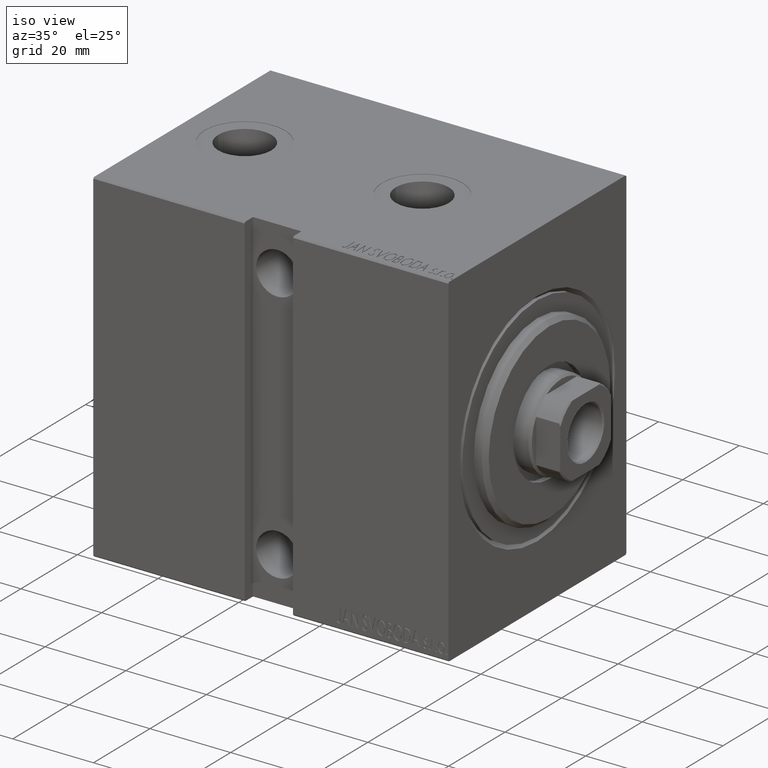
[diagram: clean part render]
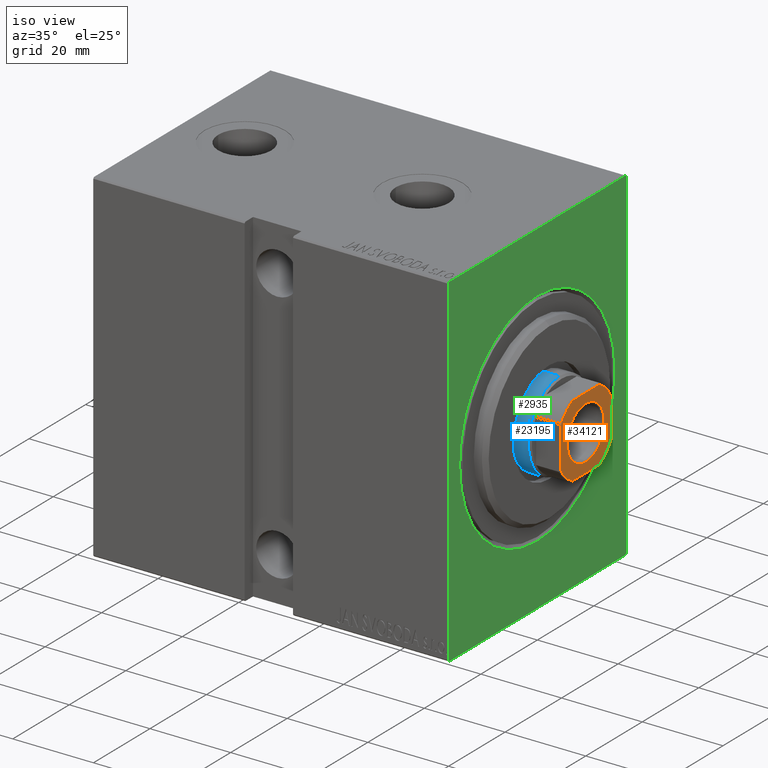
[diagram: same view with three faces highlighted in distinct colors, each labeled with its STEP entity id]
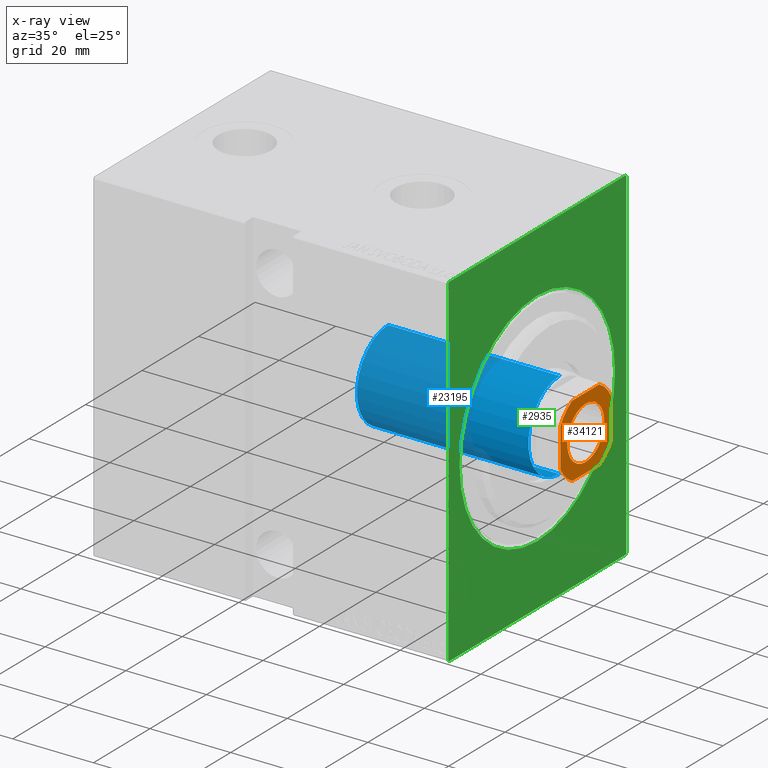
[diagram: x-ray of the same camera — body ghosted, the three highlighted faces saturated]
A machine part, iso view with three faces highlighted in distinct colors.
The next image is the same camera in x-ray (body ghosted, the three faces saturated) — at least one of them is partly hidden behind the body in this view.
Their STEP definitions:

[orange] entity #34121 — the highlighted planar face has unit normal (1, 0, -0).
#101 = DIRECTION ( 'NONE',  ( -0.000000000000000000, 0.000000000000000000, 1.000000000000000000 ) ) ;
#464 = CARTESIAN_POINT ( 'NONE',  ( -9.000000000000001776, 8.999999999999998224, 88.00000000000000000 ) ) ;
#1429 = CARTESIAN_POINT ( 'NONE',  ( -9.000000000000001776, 4.800000000000007816, 88.00000000000000000 ) ) ;
#1678 = VERTEX_POINT ( 'NONE', #1861 ) ;
#1861 = CARTESIAN_POINT ( 'NONE',  ( 8.999999999999998224, 4.799999999999978506, 88.00000000000000000 ) ) ;
#2196 = EDGE_CURVE ( 'NONE', #26020, #9207, #25052, .T. ) ;
#2554 = CARTESIAN_POINT ( 'NONE',  ( 0.000000000000000000, 0.000000000000000000, 88.00000000000000000 ) ) ;
#3001 = FACE_OUTER_BOUND ( 'NONE', #37236, .T. ) ;
#3141 = CARTESIAN_POINT ( 'NONE',  ( 0.000000000000000000, 0.000000000000000000, 88.00000000000000000 ) ) ;
#4458 = VERTEX_POINT ( 'NONE', #22059 ) ;
#4914 = CIRCLE ( 'NONE', #39031, 6.550000000000000711 ) ;
#6569 = EDGE_CURVE ( 'NONE', #4458, #25927, #35705, .T. ) ;
#6928 = LINE ( 'NONE', #464, #15140 ) ;
#6982 = ORIENTED_EDGE ( 'NONE', *, *, #20545, .T. ) ;
#7387 = EDGE_CURVE ( 'NONE', #12870, #4458, #6928, .T. ) ;
#8424 = ORIENTED_EDGE ( 'NONE', *, *, #38610, .T. ) ;
#8460 = EDGE_CURVE ( 'NONE', #9207, #1678, #29191, .T. ) ;
#8870 = CARTESIAN_POINT ( 'NONE',  ( 0.000000000000000000, 0.000000000000000000, 88.00000000000000000 ) ) ;
#8910 = DIRECTION ( 'NONE',  ( -0.000000000000000000, 0.000000000000000000, 1.000000000000000000 ) ) ;
#9027 = LINE ( 'NONE', #32619, #36908 ) ;
#9077 = ORIENTED_EDGE ( 'NONE', *, *, #7387, .T. ) ;
#9207 = VERTEX_POINT ( 'NONE', #23378 ) ;
#9534 = CARTESIAN_POINT ( 'NONE',  ( 4.799999999999974065, -9.000000000000001776, 88.00000000000000000 ) ) ;
#10119 = EDGE_CURVE ( 'NONE', #17489, #12870, #42206, .T. ) ;
#11041 = ORIENTED_EDGE ( 'NONE', *, *, #10119, .T. ) ;
#11427 = CARTESIAN_POINT ( 'NONE',  ( -4.800000000000012257, 8.999999999999998224, 88.00000000000000000 ) ) ;
#12152 = DIRECTION ( 'NONE',  ( -1.000000000000000000, -0.000000000000000000, -0.000000000000000000 ) ) ;
#12605 = AXIS2_PLACEMENT_3D ( 'NONE', #8870, #29773, #33118 ) ;
#12809 = DIRECTION ( 'NONE',  ( -0.000000000000000000, 0.000000000000000000, 1.000000000000000000 ) ) ;
#12870 = VERTEX_POINT ( 'NONE', #1429 ) ;
#13035 = DIRECTION ( 'NONE',  ( 1.000000000000000000, 0.000000000000000000, 0.000000000000000000 ) ) ;
#13257 = PLANE ( 'NONE',  #24812 ) ;
#13700 = DIRECTION ( 'NONE',  ( 1.000000000000000000, 0.000000000000000000, 0.000000000000000000 ) ) ;
#14889 = VECTOR ( 'NONE', #22421, 1000.000000000000000 ) ;
#15140 = VECTOR ( 'NONE', #34299, 1000.000000000000000 ) ;
#15391 = DIRECTION ( 'NONE',  ( 1.000000000000000000, 0.000000000000000000, 0.000000000000000000 ) ) ;
#15623 = CIRCLE ( 'NONE', #31937, 10.19999999999998863 ) ;
#16483 = CARTESIAN_POINT ( 'NONE',  ( 6.550000000000000711, 0.000000000000000000, 88.00000000000000000 ) ) ;
#17090 = CARTESIAN_POINT ( 'NONE',  ( 0.000000000000000000, 0.000000000000000000, 88.00000000000000000 ) ) ;
#17489 = VERTEX_POINT ( 'NONE', #11427 ) ;
#18506 = ORIENTED_EDGE ( 'NONE', *, *, #29408, .T. ) ;
#19123 = CARTESIAN_POINT ( 'NONE',  ( -4.799999999999956302, -9.000000000000001776, 88.00000000000000000 ) ) ;
#19956 = CARTESIAN_POINT ( 'NONE',  ( 0.000000000000000000, 0.000000000000000000, 88.00000000000000000 ) ) ;
#20496 = DIRECTION ( 'NONE',  ( 1.000000000000000000, 0.000000000000000000, 0.000000000000000000 ) ) ;
#20545 = EDGE_CURVE ( 'NONE', #29112, #39347, #40346, .T. ) ;
#20580 = CARTESIAN_POINT ( 'NONE',  ( 4.799999999999979394, 8.999999999999998224, 88.00000000000000000 ) ) ;
#20858 = DIRECTION ( 'NONE',  ( -0.000000000000000000, 0.000000000000000000, 1.000000000000000000 ) ) ;
#21989 = CARTESIAN_POINT ( 'NONE',  ( -8.999999999999998224, -9.000000000000001776, 88.00000000000000000 ) ) ;
#22059 = CARTESIAN_POINT ( 'NONE',  ( -8.999999999999998224, -4.799999999999960743, 88.00000000000000000 ) ) ;
#22421 = DIRECTION ( 'NONE',  ( 1.000000000000000000, 0.000000000000000000, 0.000000000000000000 ) ) ;
#22996 = AXIS2_PLACEMENT_3D ( 'NONE', #26034, #8910, #15391 ) ;
#23043 = CARTESIAN_POINT ( 'NONE',  ( 0.000000000000000000, 0.000000000000000000, 88.00000000000000000 ) ) ;
#23378 = CARTESIAN_POINT ( 'NONE',  ( 9.000000000000001776, -4.799999999999974065, 88.00000000000000000 ) ) ;
#23473 = FACE_BOUND ( 'NONE', #34324, .T. ) ;
#24812 = AXIS2_PLACEMENT_3D ( 'NONE', #23043, #101, #13700 ) ;
#25052 = CIRCLE ( 'NONE', #34305, 10.19999999999998863 ) ;
#25927 = VERTEX_POINT ( 'NONE', #19123 ) ;
#26020 = VERTEX_POINT ( 'NONE', #9534 ) ;
#26034 = CARTESIAN_POINT ( 'NONE',  ( 0.000000000000000000, 0.000000000000000000, 88.00000000000000000 ) ) ;
#26520 = VECTOR ( 'NONE', #39428, 1000.000000000000000 ) ;
#26998 = ORIENTED_EDGE ( 'NONE', *, *, #8460, .T. ) ;
#27068 = ORIENTED_EDGE ( 'NONE', *, *, #2196, .T. ) ;
#29112 = VERTEX_POINT ( 'NONE', #40283 ) ;
#29191 = LINE ( 'NONE', #32538, #26520 ) ;
#29408 = EDGE_CURVE ( 'NONE', #39347, #29112, #4914, .T. ) ;
#29773 = DIRECTION ( 'NONE',  ( 0.000000000000000000, -0.000000000000000000, -1.000000000000000000 ) ) ;
#31242 = VERTEX_POINT ( 'NONE', #20580 ) ;
#31937 = AXIS2_PLACEMENT_3D ( 'NONE', #2554, #12809, #13035 ) ;
#32538 = CARTESIAN_POINT ( 'NONE',  ( 8.999999999999998224, 8.999999999999998224, 88.00000000000000000 ) ) ;
#32619 = CARTESIAN_POINT ( 'NONE',  ( -9.000000000000001776, 8.999999999999998224, 88.00000000000000000 ) ) ;
#33118 = DIRECTION ( 'NONE',  ( 1.000000000000000000, 0.000000000000000000, 0.000000000000000000 ) ) ;
#33573 = AXIS2_PLACEMENT_3D ( 'NONE', #3141, #37633, #20496 ) ;
#34121 = ADVANCED_FACE ( 'NONE', ( #23473, #3001 ), #13257, .T. ) ;
#34299 = DIRECTION ( 'NONE',  ( 1.927470528863119049E-16, -1.000000000000000000, 0.000000000000000000 ) ) ;
#34305 = AXIS2_PLACEMENT_3D ( 'NONE', #17090, #20858, #34438 ) ;
#34324 = EDGE_LOOP ( 'NONE', ( #18506, #6982 ) ) ;
#34438 = DIRECTION ( 'NONE',  ( 1.000000000000000000, 0.000000000000000000, 0.000000000000000000 ) ) ;
#35705 = CIRCLE ( 'NONE', #33573, 10.19999999999997975 ) ;
#36891 = ORIENTED_EDGE ( 'NONE', *, *, #6569, .T. ) ;
#36908 = VECTOR ( 'NONE', #12152, 1000.000000000000000 ) ;
#37236 = EDGE_LOOP ( 'NONE', ( #26998, #42833, #40012, #11041, #9077, #36891, #8424, #27068 ) ) ;
#37633 = DIRECTION ( 'NONE',  ( -0.000000000000000000, 0.000000000000000000, 1.000000000000000000 ) ) ;
#38610 = EDGE_CURVE ( 'NONE', #25927, #26020, #42697, .T. ) ;
#38969 = EDGE_CURVE ( 'NONE', #31242, #17489, #9027, .T. ) ;
#39031 = AXIS2_PLACEMENT_3D ( 'NONE', #19956, #44001, #41097 ) ;
#39131 = EDGE_CURVE ( 'NONE', #1678, #31242, #15623, .T. ) ;
#39347 = VERTEX_POINT ( 'NONE', #16483 ) ;
#39428 = DIRECTION ( 'NONE',  ( -1.927470528863119049E-16, 1.000000000000000000, -0.000000000000000000 ) ) ;
#40012 = ORIENTED_EDGE ( 'NONE', *, *, #38969, .T. ) ;
#40283 = CARTESIAN_POINT ( 'NONE',  ( -6.550000000000000711, 8.021436534415164234E-16, 88.00000000000000000 ) ) ;
#40346 = CIRCLE ( 'NONE', #12605, 6.550000000000000711 ) ;
#41097 = DIRECTION ( 'NONE',  ( 1.000000000000000000, 0.000000000000000000, 0.000000000000000000 ) ) ;
#42206 = CIRCLE ( 'NONE', #22996, 10.20000000000000462 ) ;
#42697 = LINE ( 'NONE', #21989, #14889 ) ;
#42833 = ORIENTED_EDGE ( 'NONE', *, *, #39131, .T. ) ;
#44001 = DIRECTION ( 'NONE',  ( 0.000000000000000000, -0.000000000000000000, -1.000000000000000000 ) ) ;

[blue] entity #23195 — the highlighted cylindrical surface (partial cylindrical patch) has radius 11 mm, axis along (-1, -0, 0).
#320 = DIRECTION ( 'NONE',  ( -0.000000000000000000, -0.000000000000000000, -1.000000000000000000 ) ) ;
#3665 = DIRECTION ( 'NONE',  ( -0.000000000000000000, -0.000000000000000000, -1.000000000000000000 ) ) ;
#5297 = VECTOR ( 'NONE', #320, 1000.000000000000000 ) ;
#5322 = DIRECTION ( 'NONE',  ( -1.000000000000000000, 0.000000000000000000, 0.000000000000000000 ) ) ;
#6211 = CIRCLE ( 'NONE', #24692, 11.00000000000000000 ) ;
#7069 = CARTESIAN_POINT ( 'NONE',  ( 11.00000000000000000, 1.347111479062088405E-15, 39.00000000000000000 ) ) ;
#7422 = CARTESIAN_POINT ( 'NONE',  ( 0.000000000000000000, 0.000000000000000000, 81.49999999999997158 ) ) ;
#7673 = CARTESIAN_POINT ( 'NONE',  ( -11.00000000000000000, 0.000000000000000000, 81.99999999999998579 ) ) ;
#11006 = LINE ( 'NONE', #24573, #41554 ) ;
#11346 = CARTESIAN_POINT ( 'NONE',  ( 0.000000000000000000, 0.000000000000000000, 81.99999999999998579 ) ) ;
#11976 = EDGE_CURVE ( 'NONE', #30107, #33093, #11006, .T. ) ;
#12005 = DIRECTION ( 'NONE',  ( -0.000000000000000000, -0.000000000000000000, -1.000000000000000000 ) ) ;
#12010 = EDGE_CURVE ( 'NONE', #17288, #41500, #27696, .T. ) ;
#14035 = CARTESIAN_POINT ( 'NONE',  ( 0.000000000000000000, 0.000000000000000000, 39.00000000000000000 ) ) ;
#14334 = DIRECTION ( 'NONE',  ( 0.000000000000000000, 0.000000000000000000, -1.000000000000000000 ) ) ;
#15773 = CARTESIAN_POINT ( 'NONE',  ( -11.00000000000000000, 0.000000000000000000, 39.00000000000000000 ) ) ;
#16139 = CARTESIAN_POINT ( 'NONE',  ( -11.00000000000000000, 0.000000000000000000, 81.49999999999997158 ) ) ;
#17288 = VERTEX_POINT ( 'NONE', #16139 ) ;
#21335 = ORIENTED_EDGE ( 'NONE', *, *, #11976, .F. ) ;
#21814 = CIRCLE ( 'NONE', #41710, 11.00000000000000000 ) ;
#23076 = EDGE_CURVE ( 'NONE', #30107, #17288, #21814, .T. ) ;
#23195 = ADVANCED_FACE ( 'NONE', ( #35160 ), #32472, .T. ) ;
#23498 = ORIENTED_EDGE ( 'NONE', *, *, #23076, .T. ) ;
#23504 = ORIENTED_EDGE ( 'NONE', *, *, #25870, .T. ) ;
#24573 = CARTESIAN_POINT ( 'NONE',  ( 11.00000000000000000, 1.347111479062088405E-15, 81.99999999999998579 ) ) ;
#24630 = AXIS2_PLACEMENT_3D ( 'NONE', #11346, #12005, #5322 ) ;
#24692 = AXIS2_PLACEMENT_3D ( 'NONE', #14035, #41185, #35592 ) ;
#24761 = DIRECTION ( 'NONE',  ( 1.000000000000000000, 0.000000000000000000, 0.000000000000000000 ) ) ;
#24893 = CARTESIAN_POINT ( 'NONE',  ( 11.00000000000000000, 1.347111479062088405E-15, 81.49999999999997158 ) ) ;
#25870 = EDGE_CURVE ( 'NONE', #41500, #33093, #6211, .T. ) ;
#27696 = LINE ( 'NONE', #7673, #5297 ) ;
#28951 = EDGE_LOOP ( 'NONE', ( #21335, #23498, #33825, #23504 ) ) ;
#30107 = VERTEX_POINT ( 'NONE', #24893 ) ;
#32472 = CYLINDRICAL_SURFACE ( 'NONE', #24630, 11.00000000000000000 ) ;
#33093 = VERTEX_POINT ( 'NONE', #7069 ) ;
#33825 = ORIENTED_EDGE ( 'NONE', *, *, #12010, .T. ) ;
#35160 = FACE_OUTER_BOUND ( 'NONE', #28951, .T. ) ;
#35592 = DIRECTION ( 'NONE',  ( 1.000000000000000000, 0.000000000000000000, 0.000000000000000000 ) ) ;
#41185 = DIRECTION ( 'NONE',  ( 0.000000000000000000, 0.000000000000000000, 1.000000000000000000 ) ) ;
#41500 = VERTEX_POINT ( 'NONE', #15773 ) ;
#41554 = VECTOR ( 'NONE', #3665, 1000.000000000000000 ) ;
#41710 = AXIS2_PLACEMENT_3D ( 'NONE', #7422, #14334, #24761 ) ;

[green] entity #2935 — the highlighted planar face has unit normal (-1, 0, 0).
#267 = VECTOR ( 'NONE', #19739, 1000.000000000000000 ) ;
#512 = LINE ( 'NONE', #10313, #35294 ) ;
#526 = DIRECTION ( 'NONE',  ( 1.000000000000000000, 0.000000000000000000, 0.000000000000000000 ) ) ;
#1812 = DIRECTION ( 'NONE',  ( -0.000000000000000000, 0.7071067811865393571, 0.7071067811865556774 ) ) ;
#2372 = VERTEX_POINT ( 'NONE', #22260 ) ;
#2935 = ADVANCED_FACE ( 'NONE', ( #20564, #33489 ), #34145, .F. ) ;
#3970 = CARTESIAN_POINT ( 'NONE',  ( 0.000000000000000000, -31.49999999999999289, 42.19999999999996732 ) ) ;
#5179 = VECTOR ( 'NONE', #23502, 1000.000000000000000 ) ;
#5411 = CARTESIAN_POINT ( 'NONE',  ( 0.000000000000000000, 31.50000000000000000, 42.50000000000000000 ) ) ;
#5797 = EDGE_CURVE ( 'NONE', #29104, #25594, #24927, .T. ) ;
#6134 = VERTEX_POINT ( 'NONE', #13018 ) ;
#6758 = CARTESIAN_POINT ( 'NONE',  ( 0.000000000000000000, -31.49999999999999289, -42.20000000000000995 ) ) ;
#6812 = ORIENTED_EDGE ( 'NONE', *, *, #14285, .T. ) ;
#6936 = EDGE_LOOP ( 'NONE', ( #41719, #16297, #7144, #8099, #43159, #30358, #33341, #14987 ) ) ;
#7004 = VERTEX_POINT ( 'NONE', #32437 ) ;
#7123 = EDGE_CURVE ( 'NONE', #29104, #7004, #27497, .T. ) ;
#7144 = ORIENTED_EDGE ( 'NONE', *, *, #24616, .F. ) ;
#7374 = CARTESIAN_POINT ( 'NONE',  ( 0.000000000000000000, 31.19999999999999218, 42.50000000000000000 ) ) ;
#7629 = CARTESIAN_POINT ( 'NONE',  ( 0.000000000000000000, -31.49999999999999289, 42.49999999999998579 ) ) ;
#7661 = DIRECTION ( 'NONE',  ( 0.000000000000000000, 0.000000000000000000, -1.000000000000000000 ) ) ;
#7805 = DIRECTION ( 'NONE',  ( 0.000000000000000000, 0.000000000000000000, -1.000000000000000000 ) ) ;
#8017 = AXIS2_PLACEMENT_3D ( 'NONE', #17683, #526, #7661 ) ;
#8099 = ORIENTED_EDGE ( 'NONE', *, *, #10640, .T. ) ;
#8194 = AXIS2_PLACEMENT_3D ( 'NONE', #21965, #21745, #39102 ) ;
#8753 = LINE ( 'NONE', #5411, #22322 ) ;
#9111 = DIRECTION ( 'NONE',  ( 0.000000000000000000, 0.000000000000000000, -1.000000000000000000 ) ) ;
#9402 = VECTOR ( 'NONE', #41636, 1000.000000000000000 ) ;
#10160 = LINE ( 'NONE', #19308, #267 ) ;
#10313 = CARTESIAN_POINT ( 'NONE',  ( 0.000000000000000000, 31.19999999999999218, 42.50000000000000000 ) ) ;
#10640 = EDGE_CURVE ( 'NONE', #40949, #7004, #10160, .T. ) ;
#11012 = EDGE_CURVE ( 'NONE', #37393, #18970, #8753, .T. ) ;
#11672 = CARTESIAN_POINT ( 'NONE',  ( 0.000000000000000000, -31.19999999999997797, 42.49999999999998579 ) ) ;
#13018 = CARTESIAN_POINT ( 'NONE',  ( 0.000000000000000000, 31.50000000000000000, 42.20000000000001705 ) ) ;
#13827 = CARTESIAN_POINT ( 'NONE',  ( 0.000000000000000000, 0.000000000000000000, 0.000000000000000000 ) ) ;
#13948 = CARTESIAN_POINT ( 'NONE',  ( 0.000000000000000000, -31.49999999999999289, -42.50000000000000711 ) ) ;
#14285 = EDGE_CURVE ( 'NONE', #19021, #2372, #27361, .T. ) ;
#14711 = DIRECTION ( 'NONE',  ( 1.000000000000000000, 0.000000000000000000, 0.000000000000000000 ) ) ;
#14987 = ORIENTED_EDGE ( 'NONE', *, *, #35313, .T. ) ;
#15199 = LINE ( 'NONE', #39208, #30521 ) ;
#16297 = ORIENTED_EDGE ( 'NONE', *, *, #17464, .T. ) ;
#16852 = VECTOR ( 'NONE', #9111, 1000.000000000000000 ) ;
#17464 = EDGE_CURVE ( 'NONE', #37393, #6134, #512, .T. ) ;
#17683 = CARTESIAN_POINT ( 'NONE',  ( 0.000000000000000000, 0.000000000000000000, 0.000000000000000000 ) ) ;
#17739 = ORIENTED_EDGE ( 'NONE', *, *, #22423, .T. ) ;
#18970 = VERTEX_POINT ( 'NONE', #11672 ) ;
#19021 = VERTEX_POINT ( 'NONE', #19224 ) ;
#19224 = CARTESIAN_POINT ( 'NONE',  ( 0.000000000000000000, 0.000000000000000000, 27.49999999999999645 ) ) ;
#19308 = CARTESIAN_POINT ( 'NONE',  ( 0.000000000000000000, 31.50000000000001421, -42.20000000000000284 ) ) ;
#19739 = DIRECTION ( 'NONE',  ( 0.000000000000000000, -0.7071067811865393571, -0.7071067811865556774 ) ) ;
#20564 = FACE_BOUND ( 'NONE', #36812, .T. ) ;
#21745 = DIRECTION ( 'NONE',  ( 1.000000000000000000, 0.000000000000000000, 0.000000000000000000 ) ) ;
#21965 = CARTESIAN_POINT ( 'NONE',  ( 0.000000000000000000, 0.000000000000000000, 0.000000000000000000 ) ) ;
#22260 = CARTESIAN_POINT ( 'NONE',  ( 0.000000000000000000, 3.367778697655221307E-15, -27.49999999999999645 ) ) ;
#22322 = VECTOR ( 'NONE', #25000, 1000.000000000000000 ) ;
#22423 = EDGE_CURVE ( 'NONE', #2372, #19021, #28264, .T. ) ;
#23502 = DIRECTION ( 'NONE',  ( 0.000000000000000000, 1.000000000000000000, 0.000000000000000000 ) ) ;
#24138 = EDGE_CURVE ( 'NONE', #44059, #25594, #39595, .T. ) ;
#24549 = DIRECTION ( 'NONE',  ( -0.000000000000000000, 0.7071067811865721087, -0.7071067811865230368 ) ) ;
#24616 = EDGE_CURVE ( 'NONE', #40949, #6134, #36198, .T. ) ;
#24927 = LINE ( 'NONE', #42089, #9402 ) ;
#25000 = DIRECTION ( 'NONE',  ( 0.000000000000000000, -1.000000000000000000, -2.202823461557850341E-16 ) ) ;
#25594 = VERTEX_POINT ( 'NONE', #6758 ) ;
#25879 = CARTESIAN_POINT ( 'NONE',  ( 0.000000000000000000, 31.50000000000001421, -42.20000000000000284 ) ) ;
#27361 = CIRCLE ( 'NONE', #8194, 27.49999999999999645 ) ;
#27497 = LINE ( 'NONE', #13948, #5179 ) ;
#28264 = CIRCLE ( 'NONE', #33945, 27.49999999999999645 ) ;
#29104 = VERTEX_POINT ( 'NONE', #43838 ) ;
#29520 = CARTESIAN_POINT ( 'NONE',  ( 0.000000000000000000, 31.50000000000001421, -42.50000000000000711 ) ) ;
#30358 = ORIENTED_EDGE ( 'NONE', *, *, #5797, .T. ) ;
#30521 = VECTOR ( 'NONE', #1812, 1000.000000000000114 ) ;
#32437 = CARTESIAN_POINT ( 'NONE',  ( 0.000000000000000000, 31.20000000000001350, -42.50000000000000711 ) ) ;
#33341 = ORIENTED_EDGE ( 'NONE', *, *, #24138, .F. ) ;
#33489 = FACE_OUTER_BOUND ( 'NONE', #6936, .T. ) ;
#33945 = AXIS2_PLACEMENT_3D ( 'NONE', #13827, #14711, #7805 ) ;
#34145 = PLANE ( 'NONE',  #8017 ) ;
#35294 = VECTOR ( 'NONE', #24549, 1000.000000000000000 ) ;
#35313 = EDGE_CURVE ( 'NONE', #44059, #18970, #15199, .T. ) ;
#36198 = LINE ( 'NONE', #29520, #41038 ) ;
#36812 = EDGE_LOOP ( 'NONE', ( #6812, #17739 ) ) ;
#37074 = DIRECTION ( 'NONE',  ( 0.000000000000000000, -1.632680918566406300E-16, 1.000000000000000000 ) ) ;
#37393 = VERTEX_POINT ( 'NONE', #7374 ) ;
#39102 = DIRECTION ( 'NONE',  ( 0.000000000000000000, 0.000000000000000000, -1.000000000000000000 ) ) ;
#39208 = CARTESIAN_POINT ( 'NONE',  ( 0.000000000000000000, -31.49999999999999289, 42.19999999999996732 ) ) ;
#39595 = LINE ( 'NONE', #7629, #16852 ) ;
#40949 = VERTEX_POINT ( 'NONE', #25879 ) ;
#41038 = VECTOR ( 'NONE', #37074, 1000.000000000000000 ) ;
#41636 = DIRECTION ( 'NONE',  ( -0.000000000000000000, -0.7071067811865556774, 0.7071067811865393571 ) ) ;
#41719 = ORIENTED_EDGE ( 'NONE', *, *, #11012, .F. ) ;
#42089 = CARTESIAN_POINT ( 'NONE',  ( 0.000000000000000000, -31.19999999999998508, -42.50000000000000711 ) ) ;
#43159 = ORIENTED_EDGE ( 'NONE', *, *, #7123, .F. ) ;
#43838 = CARTESIAN_POINT ( 'NONE',  ( 0.000000000000000000, -31.19999999999998508, -42.50000000000000711 ) ) ;
#44059 = VERTEX_POINT ( 'NONE', #3970 ) ;